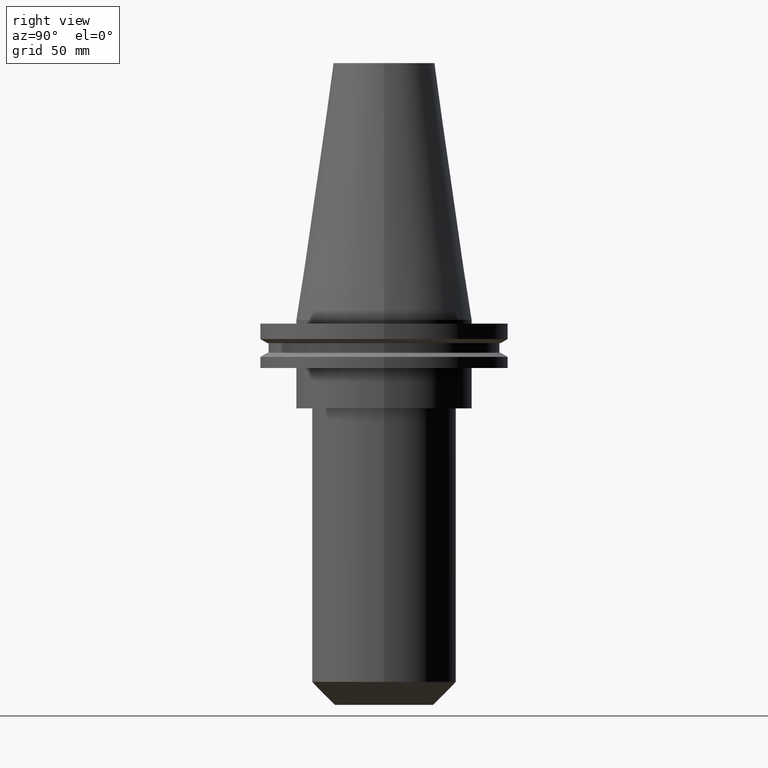
[diagram: clean part render]
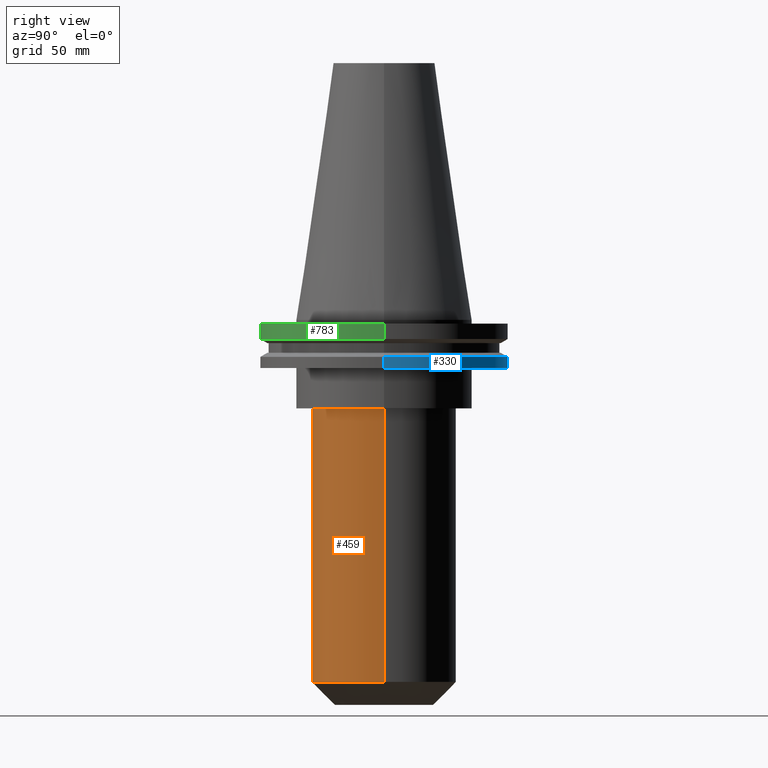
[diagram: same view with three faces highlighted in distinct colors, each labeled with its STEP entity id]
A machine part, right view with three faces highlighted in distinct colors.
Their STEP definitions:

[orange] entity #459 — the highlighted cylindrical surface (partial cylindrical patch) has radius 28.6 mm, axis along (-0, -0, 1).
#47 = FACE_OUTER_BOUND ( 'NONE', #192, .T. ) ;
#63 = ORIENTED_EDGE ( 'NONE', *, *, #773, .F. ) ;
#83 = VERTEX_POINT ( 'NONE', #139 ) ;
#98 = DIRECTION ( 'NONE',  ( -0.000000000000000000, -0.000000000000000000, 1.000000000000000000 ) ) ;
#103 = LINE ( 'NONE', #370, #816 ) ;
#107 = CARTESIAN_POINT ( 'NONE',  ( 0.000000000000000000, 0.000000000000000000, 0.000000000000000000 ) ) ;
#122 = CARTESIAN_POINT ( 'NONE',  ( -28.59999999999999432, 3.502489845561429418E-15, -35.04999999999999716 ) ) ;
#139 = CARTESIAN_POINT ( 'NONE',  ( -28.60000000000000853, 3.502489845561430996E-15, -143.3000000000000114 ) ) ;
#153 = VERTEX_POINT ( 'NONE', #122 ) ;
#172 = DIRECTION ( 'NONE',  ( 1.000000000000000000, 0.000000000000000000, 0.000000000000000000 ) ) ;
#192 = EDGE_LOOP ( 'NONE', ( #63, #663, #218, #314 ) ) ;
#218 = ORIENTED_EDGE ( 'NONE', *, *, #572, .T. ) ;
#247 = CYLINDRICAL_SURFACE ( 'NONE', #637, 28.59999999999999432 ) ;
#257 = CARTESIAN_POINT ( 'NONE',  ( 0.000000000000000000, 0.000000000000000000, -35.04999999999999716 ) ) ;
#262 = LINE ( 'NONE', #525, #807 ) ;
#314 = ORIENTED_EDGE ( 'NONE', *, *, #735, .T. ) ;
#316 = DIRECTION ( 'NONE',  ( -0.000000000000000000, -0.000000000000000000, 1.000000000000000000 ) ) ;
#370 = CARTESIAN_POINT ( 'NONE',  ( 28.59999999999999432, 0.000000000000000000, 0.000000000000000000 ) ) ;
#374 = CARTESIAN_POINT ( 'NONE',  ( 0.000000000000000000, 0.000000000000000000, -143.3000000000000114 ) ) ;
#381 = VERTEX_POINT ( 'NONE', #748 ) ;
#398 = DIRECTION ( 'NONE',  ( 0.000000000000000000, 0.000000000000000000, -1.000000000000000000 ) ) ;
#411 = CARTESIAN_POINT ( 'NONE',  ( 28.60000000000000497, 0.000000000000000000, -143.3000000000000114 ) ) ;
#417 = CIRCLE ( 'NONE', #697, 28.59999999999999432 ) ;
#446 = DIRECTION ( 'NONE',  ( 1.000000000000000000, 0.000000000000000000, 0.000000000000000000 ) ) ;
#459 = ADVANCED_FACE ( 'NONE', ( #47 ), #247, .T. ) ;
#478 = EDGE_CURVE ( 'NONE', #83, #805, #526, .T. ) ;
#525 = CARTESIAN_POINT ( 'NONE',  ( -28.59999999999999432, 3.502489845561429418E-15, 0.000000000000000000 ) ) ;
#526 = CIRCLE ( 'NONE', #609, 28.60000000000000497 ) ;
#572 = EDGE_CURVE ( 'NONE', #805, #381, #103, .T. ) ;
#609 = AXIS2_PLACEMENT_3D ( 'NONE', #374, #316, #172 ) ;
#634 = DIRECTION ( 'NONE',  ( -0.000000000000000000, -0.000000000000000000, 1.000000000000000000 ) ) ;
#637 = AXIS2_PLACEMENT_3D ( 'NONE', #107, #98, #446 ) ;
#663 = ORIENTED_EDGE ( 'NONE', *, *, #478, .T. ) ;
#697 = AXIS2_PLACEMENT_3D ( 'NONE', #257, #398, #724 ) ;
#724 = DIRECTION ( 'NONE',  ( 1.000000000000000000, 0.000000000000000000, 0.000000000000000000 ) ) ;
#735 = EDGE_CURVE ( 'NONE', #381, #153, #417, .T. ) ;
#748 = CARTESIAN_POINT ( 'NONE',  ( 28.59999999999999432, 0.000000000000000000, -35.04999999999999716 ) ) ;
#773 = EDGE_CURVE ( 'NONE', #83, #153, #262, .T. ) ;
#786 = DIRECTION ( 'NONE',  ( -0.000000000000000000, -0.000000000000000000, 1.000000000000000000 ) ) ;
#805 = VERTEX_POINT ( 'NONE', #411 ) ;
#807 = VECTOR ( 'NONE', #786, 1000.000000000000000 ) ;
#816 = VECTOR ( 'NONE', #634, 1000.000000000000000 ) ;

[blue] entity #330 — the highlighted cylindrical surface (partial cylindrical patch) has radius 49.215 mm, axis along (-0, -0, 1).
#21 = DIRECTION ( 'NONE',  ( 1.000000000000000000, 0.000000000000000000, 0.000000000000000000 ) ) ;
#37 = VERTEX_POINT ( 'NONE', #195 ) ;
#74 = DIRECTION ( 'NONE',  ( -0.000000000000000000, -0.000000000000000000, 1.000000000000000000 ) ) ;
#116 = AXIS2_PLACEMENT_3D ( 'NONE', #128, #335, #836 ) ;
#128 = CARTESIAN_POINT ( 'NONE',  ( 0.000000000000000000, 0.000000000000000000, -19.04999999999999716 ) ) ;
#135 = DIRECTION ( 'NONE',  ( -0.000000000000000000, -0.000000000000000000, 1.000000000000000000 ) ) ;
#141 = LINE ( 'NONE', #599, #173 ) ;
#149 = EDGE_LOOP ( 'NONE', ( #565, #645, #480, #709 ) ) ;
#173 = VECTOR ( 'NONE', #669, 1000.000000000000000 ) ;
#174 = VERTEX_POINT ( 'NONE', #274 ) ;
#195 = CARTESIAN_POINT ( 'NONE',  ( -49.21499999999998920, 6.027099222003697037E-15, -14.65761014474876944 ) ) ;
#207 = EDGE_CURVE ( 'NONE', #649, #174, #141, .T. ) ;
#243 = CIRCLE ( 'NONE', #309, 49.21499999999998920 ) ;
#274 = CARTESIAN_POINT ( 'NONE',  ( 49.21499999999998920, 0.000000000000000000, -14.65761014474876944 ) ) ;
#309 = AXIS2_PLACEMENT_3D ( 'NONE', #668, #135, #851 ) ;
#330 = ADVANCED_FACE ( 'NONE', ( #740 ), #678, .T. ) ;
#335 = DIRECTION ( 'NONE',  ( -0.000000000000000000, -0.000000000000000000, 1.000000000000000000 ) ) ;
#385 = VECTOR ( 'NONE', #707, 1000.000000000000000 ) ;
#466 = EDGE_CURVE ( 'NONE', #854, #37, #758, .T. ) ;
#480 = ORIENTED_EDGE ( 'NONE', *, *, #667, .F. ) ;
#565 = ORIENTED_EDGE ( 'NONE', *, *, #712, .T. ) ;
#599 = CARTESIAN_POINT ( 'NONE',  ( 49.21499999999998920, 0.000000000000000000, 101.5999999999999943 ) ) ;
#611 = CARTESIAN_POINT ( 'NONE',  ( -49.21499999999998920, 6.027099222003697037E-15, -19.04999999999999716 ) ) ;
#626 = CARTESIAN_POINT ( 'NONE',  ( 0.000000000000000000, 0.000000000000000000, 101.5999999999999943 ) ) ;
#645 = ORIENTED_EDGE ( 'NONE', *, *, #466, .T. ) ;
#649 = VERTEX_POINT ( 'NONE', #728 ) ;
#667 = EDGE_CURVE ( 'NONE', #174, #37, #243, .T. ) ;
#668 = CARTESIAN_POINT ( 'NONE',  ( 0.000000000000000000, 0.000000000000000000, -14.65761014474876944 ) ) ;
#669 = DIRECTION ( 'NONE',  ( -0.000000000000000000, -0.000000000000000000, 1.000000000000000000 ) ) ;
#678 = CYLINDRICAL_SURFACE ( 'NONE', #714, 49.21499999999998920 ) ;
#707 = DIRECTION ( 'NONE',  ( -0.000000000000000000, -0.000000000000000000, 1.000000000000000000 ) ) ;
#709 = ORIENTED_EDGE ( 'NONE', *, *, #207, .F. ) ;
#712 = EDGE_CURVE ( 'NONE', #649, #854, #727, .T. ) ;
#714 = AXIS2_PLACEMENT_3D ( 'NONE', #626, #74, #21 ) ;
#727 = CIRCLE ( 'NONE', #116, 49.21499999999998920 ) ;
#728 = CARTESIAN_POINT ( 'NONE',  ( 49.21499999999998920, 0.000000000000000000, -19.04999999999999716 ) ) ;
#740 = FACE_OUTER_BOUND ( 'NONE', #149, .T. ) ;
#755 = CARTESIAN_POINT ( 'NONE',  ( -49.21499999999998920, 6.027099222003697037E-15, 101.5999999999999943 ) ) ;
#758 = LINE ( 'NONE', #755, #385 ) ;
#836 = DIRECTION ( 'NONE',  ( 1.000000000000000000, 0.000000000000000000, 0.000000000000000000 ) ) ;
#851 = DIRECTION ( 'NONE',  ( 1.000000000000000000, 0.000000000000000000, 0.000000000000000000 ) ) ;
#854 = VERTEX_POINT ( 'NONE', #611 ) ;

[green] entity #783 — the highlighted cylindrical surface (partial cylindrical patch) has radius 49.215 mm, axis along (-0, -0, 1).
#9 = CARTESIAN_POINT ( 'NONE',  ( -49.21499999999999631, 6.027099222003697826E-15, -1.499999999999987566 ) ) ;
#27 = AXIS2_PLACEMENT_3D ( 'NONE', #224, #682, #164 ) ;
#44 = VERTEX_POINT ( 'NONE', #594 ) ;
#54 = DIRECTION ( 'NONE',  ( 1.000000000000000000, 0.000000000000000000, 0.000000000000000000 ) ) ;
#60 = CARTESIAN_POINT ( 'NONE',  ( -49.21499999999999631, 6.027099222003697826E-15, 101.5999999999999943 ) ) ;
#68 = EDGE_CURVE ( 'NONE', #44, #785, #359, .T. ) ;
#131 = FACE_OUTER_BOUND ( 'NONE', #713, .T. ) ;
#132 = VECTOR ( 'NONE', #339, 1000.000000000000000 ) ;
#164 = DIRECTION ( 'NONE',  ( 1.000000000000000000, 0.000000000000000000, 0.000000000000000000 ) ) ;
#213 = LINE ( 'NONE', #537, #132 ) ;
#224 = CARTESIAN_POINT ( 'NONE',  ( 0.000000000000000000, 0.000000000000000000, 101.5999999999999943 ) ) ;
#233 = CIRCLE ( 'NONE', #343, 49.21499999999999631 ) ;
#252 = ORIENTED_EDGE ( 'NONE', *, *, #268, .F. ) ;
#268 = EDGE_CURVE ( 'NONE', #810, #722, #233, .T. ) ;
#279 = DIRECTION ( 'NONE',  ( -0.000000000000000000, -0.000000000000000000, 1.000000000000000000 ) ) ;
#289 = CARTESIAN_POINT ( 'NONE',  ( 49.21500000000000341, 0.000000000000000000, -7.602389855251287187 ) ) ;
#295 = ORIENTED_EDGE ( 'NONE', *, *, #767, .F. ) ;
#320 = CARTESIAN_POINT ( 'NONE',  ( 0.000000000000000000, 0.000000000000000000, -7.602389855251287187 ) ) ;
#339 = DIRECTION ( 'NONE',  ( -0.000000000000000000, -0.000000000000000000, 1.000000000000000000 ) ) ;
#343 = AXIS2_PLACEMENT_3D ( 'NONE', #806, #279, #808 ) ;
#350 = VECTOR ( 'NONE', #719, 1000.000000000000000 ) ;
#359 = CIRCLE ( 'NONE', #835, 49.21500000000000341 ) ;
#391 = ORIENTED_EDGE ( 'NONE', *, *, #68, .T. ) ;
#460 = CYLINDRICAL_SURFACE ( 'NONE', #27, 49.21499999999999631 ) ;
#517 = CARTESIAN_POINT ( 'NONE',  ( 49.21499999999999631, 0.000000000000000000, -1.499999999999987566 ) ) ;
#536 = ORIENTED_EDGE ( 'NONE', *, *, #850, .T. ) ;
#537 = CARTESIAN_POINT ( 'NONE',  ( 49.21499999999999631, 0.000000000000000000, 101.5999999999999943 ) ) ;
#591 = DIRECTION ( 'NONE',  ( -0.000000000000000000, -0.000000000000000000, 1.000000000000000000 ) ) ;
#594 = CARTESIAN_POINT ( 'NONE',  ( -49.21500000000000341, 6.027099222003699404E-15, -7.602389855251287187 ) ) ;
#682 = DIRECTION ( 'NONE',  ( -0.000000000000000000, -0.000000000000000000, 1.000000000000000000 ) ) ;
#713 = EDGE_LOOP ( 'NONE', ( #295, #391, #536, #252 ) ) ;
#719 = DIRECTION ( 'NONE',  ( -0.000000000000000000, -0.000000000000000000, 1.000000000000000000 ) ) ;
#722 = VERTEX_POINT ( 'NONE', #517 ) ;
#767 = EDGE_CURVE ( 'NONE', #44, #810, #843, .T. ) ;
#783 = ADVANCED_FACE ( 'NONE', ( #131 ), #460, .T. ) ;
#785 = VERTEX_POINT ( 'NONE', #289 ) ;
#806 = CARTESIAN_POINT ( 'NONE',  ( 0.000000000000000000, 0.000000000000000000, -1.499999999999987566 ) ) ;
#808 = DIRECTION ( 'NONE',  ( 1.000000000000000000, 0.000000000000000000, 0.000000000000000000 ) ) ;
#810 = VERTEX_POINT ( 'NONE', #9 ) ;
#835 = AXIS2_PLACEMENT_3D ( 'NONE', #320, #591, #54 ) ;
#843 = LINE ( 'NONE', #60, #350 ) ;
#850 = EDGE_CURVE ( 'NONE', #785, #722, #213, .T. ) ;